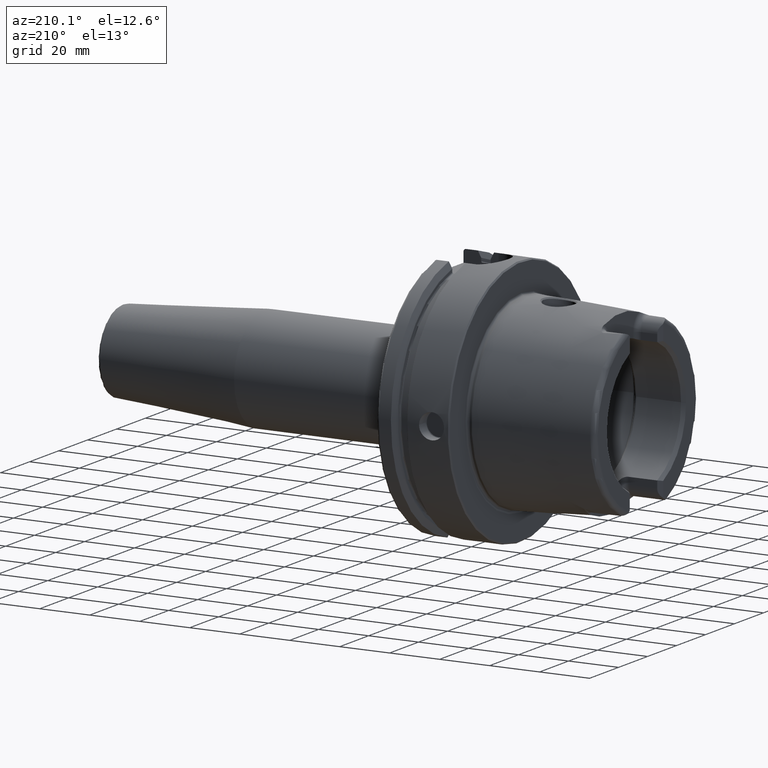
[diagram: clean part render]
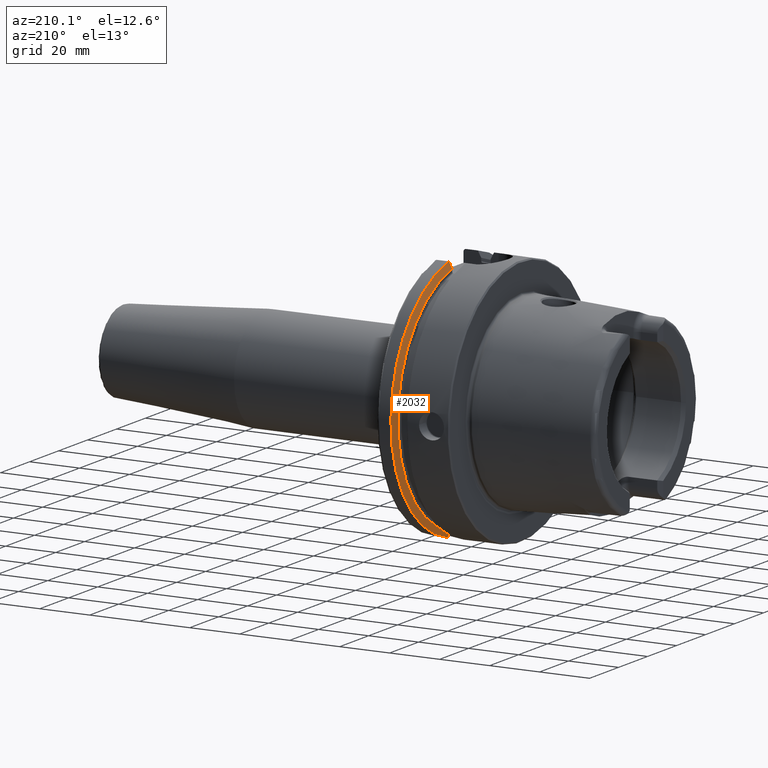
[diagram: same view with one face highlighted and labeled with its STEP entity id]
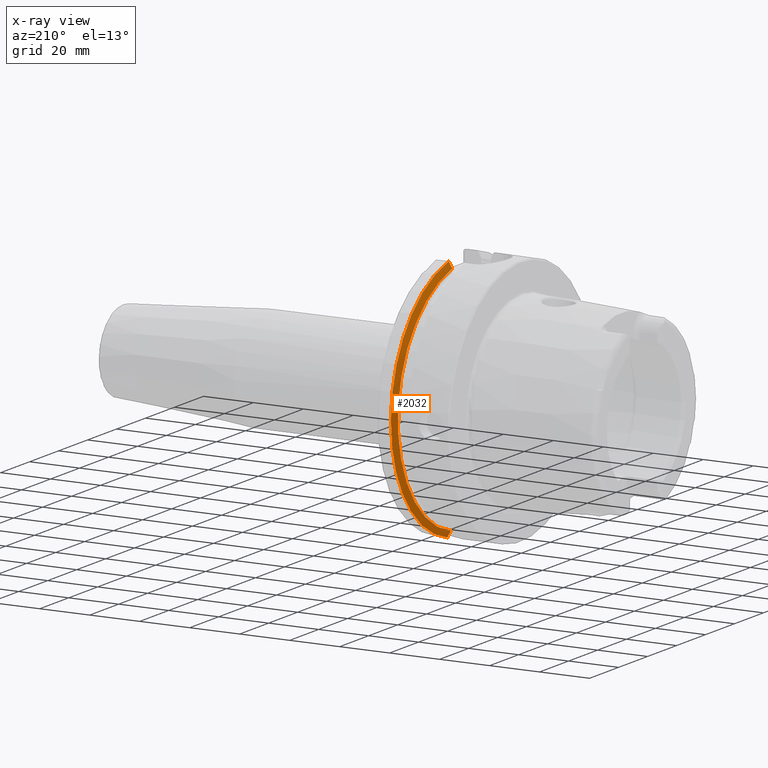
[diagram: x-ray of the same camera — body ghosted, the highlighted face saturated]
A machine part, auxiliary view. The second image highlights one B-rep face of the part: STEP entity #2032.
The next image is the same camera in x-ray: the body ghosted, the highlighted face saturated — about 0% of this face is hidden behind the body in this view.
In plain terms, the highlighted conical surface has half-angle 60 deg.
Its self-contained STEP definition (entity closure, byte-faithful):
#24=(
BOUNDED_CURVE()
B_SPLINE_CURVE(2,(#4165,#4166,#4167),.UNSPECIFIED.,.F.,.F.)
B_SPLINE_CURVE_WITH_KNOTS((3,3),(0.,0.28292349080556),.UNSPECIFIED.)
CURVE()
GEOMETRIC_REPRESENTATION_ITEM()
RATIONAL_B_SPLINE_CURVE((1.,1.0003193410929,1.))
REPRESENTATION_ITEM('')
);
#27=(
BOUNDED_CURVE()
B_SPLINE_CURVE(2,(#4256,#4257,#4258),.UNSPECIFIED.,.F.,.F.)
B_SPLINE_CURVE_WITH_KNOTS((3,3),(0.,0.281931851964124),.UNSPECIFIED.)
CURVE()
GEOMETRIC_REPRESENTATION_ITEM()
RATIONAL_B_SPLINE_CURVE((1.,1.00031639802473,1.))
REPRESENTATION_ITEM('')
);
#270=FACE_OUTER_BOUND('',#398,.T.);
#398=EDGE_LOOP('',(#1681,#1682,#1683,#1684));
#745=CIRCLE('',#2253,50.);
#747=CIRCLE('',#2257,47.5975952641917);
#953=VERTEX_POINT('',#4162);
#954=VERTEX_POINT('',#4164);
#967=VERTEX_POINT('',#4248);
#968=VERTEX_POINT('',#4254);
#1208=EDGE_CURVE('',#954,#953,#24,.T.);
#1229=EDGE_CURVE('',#954,#967,#745,.T.);
#1232=EDGE_CURVE('',#953,#968,#747,.T.);
#1233=EDGE_CURVE('',#968,#967,#27,.T.);
#1681=ORIENTED_EDGE('',*,*,#1208,.T.);
#1682=ORIENTED_EDGE('',*,*,#1232,.T.);
#1683=ORIENTED_EDGE('',*,*,#1233,.T.);
#1684=ORIENTED_EDGE('',*,*,#1229,.F.);
#1961=CONICAL_SURFACE('',#2256,48.7987976320958,1.0471975511966);
#2032=ADVANCED_FACE('',(#270),#1961,.T.);
#2253=AXIS2_PLACEMENT_3D('',#4249,#2733,#2734);
#2256=AXIS2_PLACEMENT_3D('',#4253,#2740,#2741);
#2257=AXIS2_PLACEMENT_3D('',#4255,#2742,#2743);
#2733=DIRECTION('center_axis',(1.,0.,0.));
#2734=DIRECTION('ref_axis',(0.,0.,-1.));
#2740=DIRECTION('center_axis',(1.,0.,0.));
#2741=DIRECTION('ref_axis',(0.,1.,0.));
#2742=DIRECTION('center_axis',(1.,0.,0.));
#2743=DIRECTION('ref_axis',(0.,0.,-1.));
#4162=CARTESIAN_POINT('',(21.875,11.,-46.3090819919138));
#4164=CARTESIAN_POINT('',(23.2620290209214,11.,-48.7749935930288));
#4165=CARTESIAN_POINT('Ctrl Pts',(23.2620290209214,11.,-48.7749935930288));
#4166=CARTESIAN_POINT('Ctrl Pts',(22.5505288964237,11.,-47.5116880808802));
#4167=CARTESIAN_POINT('Ctrl Pts',(21.875,11.,-46.3090819919138));
#4248=CARTESIAN_POINT('',(23.2620290209214,10.,48.9897948556636));
#4249=CARTESIAN_POINT('Origin',(23.2620290209214,0.,0.));
#4253=CARTESIAN_POINT('Origin',(22.5685145104607,0.,0.));
#4254=CARTESIAN_POINT('',(21.875,10.,46.5352670018535));
#4255=CARTESIAN_POINT('Origin',(21.875,0.,0.));
#4256=CARTESIAN_POINT('Ctrl Pts',(21.875,10.,46.5352670018535));
#4257=CARTESIAN_POINT('Ctrl Pts',(22.5506945724782,10.,47.7323213251992));
#4258=CARTESIAN_POINT('Ctrl Pts',(23.2620290209214,10.,48.9897948556636));